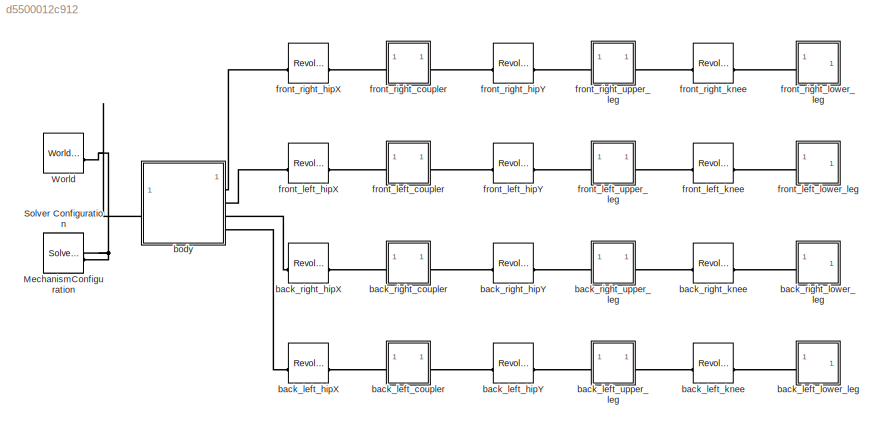
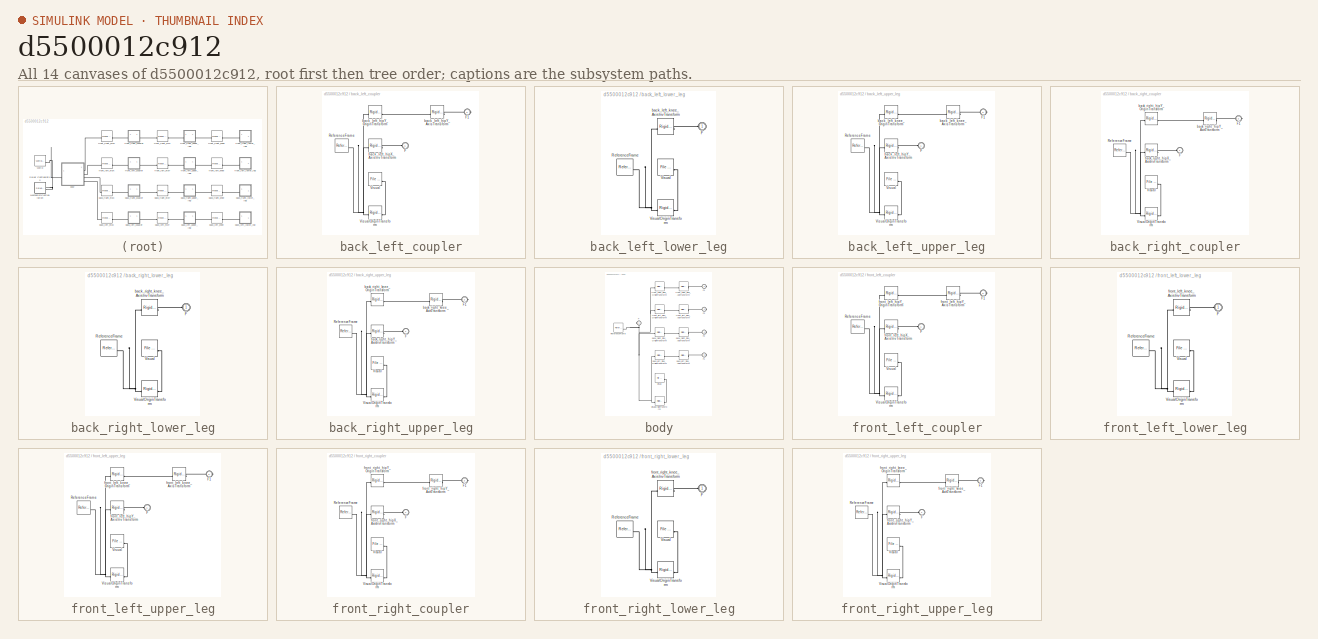
[diagram: thumbnail index - all 14 canvases of the model, root first then tree order]
MODEL slx_d5500012c912
KIND model
CONFIG AbsTol = auto
CONFIG EnableMultiTasking = off
CONFIG FixedStep = auto
CONFIG MaxStep = auto
CONFIG MinStep = auto
CONFIG RelTol = 1e-3
CONFIG SampleTimeConstraint = Unconstrained
CONFIG SolverName = VariableStepAuto
CONFIG StartTime = 0.0
CONFIG StopTime = 10.0
BLOCK [Reference] MechanismConfiguration  REF=sm_lib/Utilities/Mechanism
Configuration
  SourceBlock = sm_lib/Utilities/Mechanism\nConfiguration
  SourceType = Mechanism\nConfiguration
BLOCK [Reference] Solver Configuration  REF=nesl_utility/Solver
Configuration
  SourceBlock = nesl_utility/Solver\nConfiguration
  SourceType = Solver\nConfiguration
BLOCK [Reference] World  REF=sm_lib/Frames and
Transforms/World Frame
  SourceBlock = sm_lib/Frames and\nTransforms/World Frame
  SourceType = World Frame
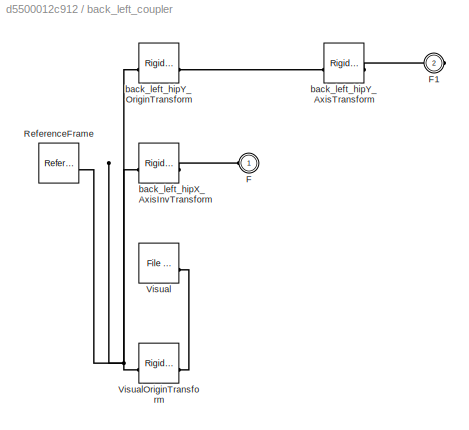
BLOCK [SubSystem] back_left_coupler
BLOCK [PMIOPort] back_left_coupler/F
  Side = Left
BLOCK [PMIOPort] back_left_coupler/F1
  Port = 2
  Side = Right
BLOCK [Reference] back_left_coupler/ReferenceFrame  REF=sm_lib/Frames and
Transforms/Reference
Frame
  SourceBlock = sm_lib/Frames and\nTransforms/Reference\nFrame
  SourceType = Reference\nFrame
BLOCK [Reference] back_left_coupler/Visual  REF=sm_lib/Body Elements/File Solid
  SourceBlock = sm_lib/Body Elements/File Solid
  SourceType = File Solid
BLOCK [Reference] back_left_coupler/VisualOriginTransform  REF=sm_lib/Frames and
Transforms/Rigid
Transform
  SourceBlock = sm_lib/Frames and\nTransforms/Rigid\nTransform
  SourceType = Rigid\nTransform
BLOCK [Reference] back_left_coupler/back_left_hipX_AxisInvTransform  REF=sm_lib/Frames and
Transforms/Rigid
Transform
  SourceBlock = sm_lib/Frames and\nTransforms/Rigid\nTransform
  SourceType = Rigid\nTransform
BLOCK [Reference] back_left_coupler/back_left_hipY_AxisTransform  REF=sm_lib/Frames and
Transforms/Rigid
Transform
  SourceBlock = sm_lib/Frames and\nTransforms/Rigid\nTransform
  SourceType = Rigid\nTransform
BLOCK [Reference] back_left_coupler/back_left_hipY_OriginTransform  REF=sm_lib/Frames and
Transforms/Rigid
Transform
  SourceBlock = sm_lib/Frames and\nTransforms/Rigid\nTransform
  SourceType = Rigid\nTransform
BLOCK [Reference] back_left_hipX  REF=sm_lib/Joints/Revolute Joint
  SourceBlock = sm_lib/Joints/Revolute Joint
  SourceType = Revolute Joint
BLOCK [Reference] back_left_hipY  REF=sm_lib/Joints/Revolute Joint
  SourceBlock = sm_lib/Joints/Revolute Joint
  SourceType = Revolute Joint
BLOCK [Reference] back_left_knee  REF=sm_lib/Joints/Revolute Joint
  SourceBlock = sm_lib/Joints/Revolute Joint
  SourceType = Revolute Joint
BLOCK [SubSystem] back_left_lower_leg
BLOCK [PMIOPort] back_left_lower_leg/F
  Side = Left
BLOCK [Reference] back_left_lower_leg/ReferenceFrame  REF=sm_lib/Frames and
Transforms/Reference
Frame
  SourceBlock = sm_lib/Frames and\nTransforms/Reference\nFrame
  SourceType = Reference\nFrame
BLOCK [Reference] back_left_lower_leg/Visual  REF=sm_lib/Body Elements/File Solid
  SourceBlock = sm_lib/Body Elements/File Solid
  SourceType = File Solid
BLOCK [Reference] back_left_lower_leg/VisualOriginTransform  REF=sm_lib/Frames and
Transforms/Rigid
Transform
  SourceBlock = sm_lib/Frames and\nTransforms/Rigid\nTransform
  SourceType = Rigid\nTransform
BLOCK [Reference] back_left_lower_leg/back_left_knee_AxisInvTransform  REF=sm_lib/Frames and
Transforms/Rigid
Transform
  SourceBlock = sm_lib/Frames and\nTransforms/Rigid\nTransform
  SourceType = Rigid\nTransform
BLOCK [SubSystem] back_left_upper_leg
BLOCK [PMIOPort] back_left_upper_leg/F
  Side = Left
BLOCK [PMIOPort] back_left_upper_leg/F1
  Port = 2
  Side = Right
BLOCK [Reference] back_left_upper_leg/ReferenceFrame  REF=sm_lib/Frames and
Transforms/Reference
Frame
  SourceBlock = sm_lib/Frames and\nTransforms/Reference\nFrame
  SourceType = Reference\nFrame
BLOCK [Reference] back_left_upper_leg/Visual  REF=sm_lib/Body Elements/File Solid
  SourceBlock = sm_lib/Body Elements/File Solid
  SourceType = File Solid
BLOCK [Reference] back_left_upper_leg/VisualOriginTransform  REF=sm_lib/Frames and
Transforms/Rigid
Transform
  SourceBlock = sm_lib/Frames and\nTransforms/Rigid\nTransform
  SourceType = Rigid\nTransform
BLOCK [Reference] back_left_upper_leg/back_left_hipY_AxisInvTransform  REF=sm_lib/Frames and
Transforms/Rigid
Transform
  SourceBlock = sm_lib/Frames and\nTransforms/Rigid\nTransform
  SourceType = Rigid\nTransform
BLOCK [Reference] back_left_upper_leg/back_left_knee_AxisTransform  REF=sm_lib/Frames and
Transforms/Rigid
Transform
  SourceBlock = sm_lib/Frames and\nTransforms/Rigid\nTransform
  SourceType = Rigid\nTransform
BLOCK [Reference] back_left_upper_leg/back_left_knee_OriginTransform  REF=sm_lib/Frames and
Transforms/Rigid
Transform
  SourceBlock = sm_lib/Frames and\nTransforms/Rigid\nTransform
  SourceType = Rigid\nTransform
BLOCK [SubSystem] back_right_coupler
BLOCK [PMIOPort] back_right_coupler/F
  Side = Left
BLOCK [PMIOPort] back_right_coupler/F1
  Port = 2
  Side = Right
BLOCK [Reference] back_right_coupler/ReferenceFrame  REF=sm_lib/Frames and
Transforms/Reference
Frame
  SourceBlock = sm_lib/Frames and\nTransforms/Reference\nFrame
  SourceType = Reference\nFrame
BLOCK [Reference] back_right_coupler/Visual  REF=sm_lib/Body Elements/File Solid
  SourceBlock = sm_lib/Body Elements/File Solid
  SourceType = File Solid
BLOCK [Reference] back_right_coupler/VisualOriginTransform  REF=sm_lib/Frames and
Transforms/Rigid
Transform
  SourceBlock = sm_lib/Frames and\nTransforms/Rigid\nTransform
  SourceType = Rigid\nTransform
BLOCK [Reference] back_right_coupler/back_right_hipX_AxisInvTransform  REF=sm_lib/Frames and
Transforms/Rigid
Transform
  SourceBlock = sm_lib/Frames and\nTransforms/Rigid\nTransform
  SourceType = Rigid\nTransform
BLOCK [Reference] back_right_coupler/back_right_hipY_AxisTransform  REF=sm_lib/Frames and
Transforms/Rigid
Transform
  SourceBlock = sm_lib/Frames and\nTransforms/Rigid\nTransform
  SourceType = Rigid\nTransform
BLOCK [Reference] back_right_coupler/back_right_hipY_OriginTransform  REF=sm_lib/Frames and
Transforms/Rigid
Transform
  SourceBlock = sm_lib/Frames and\nTransforms/Rigid\nTransform
  SourceType = Rigid\nTransform
BLOCK [Reference] back_right_hipX  REF=sm_lib/Joints/Revolute Joint
  SourceBlock = sm_lib/Joints/Revolute Joint
  SourceType = Revolute Joint
BLOCK [Reference] back_right_hipY  REF=sm_lib/Joints/Revolute Joint
  SourceBlock = sm_lib/Joints/Revolute Joint
  SourceType = Revolute Joint
BLOCK [Reference] back_right_knee  REF=sm_lib/Joints/Revolute Joint
  SourceBlock = sm_lib/Joints/Revolute Joint
  SourceType = Revolute Joint
BLOCK [SubSystem] back_right_lower_leg
BLOCK [PMIOPort] back_right_lower_leg/F
  Side = Left
BLOCK [Reference] back_right_lower_leg/ReferenceFrame  REF=sm_lib/Frames and
Transforms/Reference
Frame
  SourceBlock = sm_lib/Frames and\nTransforms/Reference\nFrame
  SourceType = Reference\nFrame
BLOCK [Reference] back_right_lower_leg/Visual  REF=sm_lib/Body Elements/File Solid
  SourceBlock = sm_lib/Body Elements/File Solid
  SourceType = File Solid
BLOCK [Reference] back_right_lower_leg/VisualOriginTransform  REF=sm_lib/Frames and
Transforms/Rigid
Transform
  SourceBlock = sm_lib/Frames and\nTransforms/Rigid\nTransform
  SourceType = Rigid\nTransform
BLOCK [Reference] back_right_lower_leg/back_right_knee_AxisInvTransform  REF=sm_lib/Frames and
Transforms/Rigid
Transform
  SourceBlock = sm_lib/Frames and\nTransforms/Rigid\nTransform
  SourceType = Rigid\nTransform
BLOCK [SubSystem] back_right_upper_leg
BLOCK [PMIOPort] back_right_upper_leg/F
  Side = Left
BLOCK [PMIOPort] back_right_upper_leg/F1
  Port = 2
  Side = Right
BLOCK [Reference] back_right_upper_leg/ReferenceFrame  REF=sm_lib/Frames and
Transforms/Reference
Frame
  SourceBlock = sm_lib/Frames and\nTransforms/Reference\nFrame
  SourceType = Reference\nFrame
BLOCK [Reference] back_right_upper_leg/Visual  REF=sm_lib/Body Elements/File Solid
  SourceBlock = sm_lib/Body Elements/File Solid
  SourceType = File Solid
BLOCK [Reference] back_right_upper_leg/VisualOriginTransform  REF=sm_lib/Frames and
Transforms/Rigid
Transform
  SourceBlock = sm_lib/Frames and\nTransforms/Rigid\nTransform
  SourceType = Rigid\nTransform
BLOCK [Reference] back_right_upper_leg/back_right_hipY_AxisInvTransform  REF=sm_lib/Frames and
Transforms/Rigid
Transform
  SourceBlock = sm_lib/Frames and\nTransforms/Rigid\nTransform
  SourceType = Rigid\nTransform
BLOCK [Reference] back_right_upper_leg/back_right_knee_AxisTransform  REF=sm_lib/Frames and
Transforms/Rigid
Transform
  SourceBlock = sm_lib/Frames and\nTransforms/Rigid\nTransform
  SourceType = Rigid\nTransform
BLOCK [Reference] back_right_upper_leg/back_right_knee_OriginTransform  REF=sm_lib/Frames and
Transforms/Rigid
Transform
  SourceBlock = sm_lib/Frames and\nTransforms/Rigid\nTransform
  SourceType = Rigid\nTransform
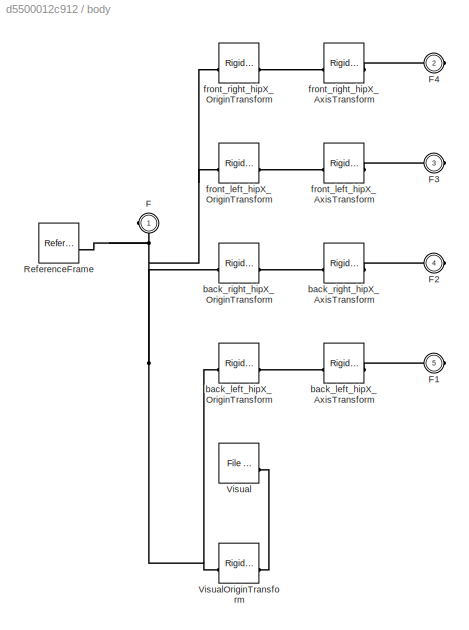
BLOCK [SubSystem] body
BLOCK [PMIOPort] body/F
  Side = Left
BLOCK [PMIOPort] body/F1
  Port = 5
  Side = Right
BLOCK [PMIOPort] body/F2
  Port = 4
  Side = Right
BLOCK [PMIOPort] body/F3
  Port = 3
  Side = Right
BLOCK [PMIOPort] body/F4
  Port = 2
  Side = Right
BLOCK [Reference] body/ReferenceFrame  REF=sm_lib/Frames and
Transforms/Reference
Frame
  SourceBlock = sm_lib/Frames and\nTransforms/Reference\nFrame
  SourceType = Reference\nFrame
BLOCK [Reference] body/Visual  REF=sm_lib/Body Elements/File Solid
  SourceBlock = sm_lib/Body Elements/File Solid
  SourceType = File Solid
BLOCK [Reference] body/VisualOriginTransform  REF=sm_lib/Frames and
Transforms/Rigid
Transform
  SourceBlock = sm_lib/Frames and\nTransforms/Rigid\nTransform
  SourceType = Rigid\nTransform
BLOCK [Reference] body/back_left_hipX_AxisTransform  REF=sm_lib/Frames and
Transforms/Rigid
Transform
  SourceBlock = sm_lib/Frames and\nTransforms/Rigid\nTransform
  SourceType = Rigid\nTransform
BLOCK [Reference] body/back_left_hipX_OriginTransform  REF=sm_lib/Frames and
Transforms/Rigid
Transform
  SourceBlock = sm_lib/Frames and\nTransforms/Rigid\nTransform
  SourceType = Rigid\nTransform
BLOCK [Reference] body/back_right_hipX_AxisTransform  REF=sm_lib/Frames and
Transforms/Rigid
Transform
  SourceBlock = sm_lib/Frames and\nTransforms/Rigid\nTransform
  SourceType = Rigid\nTransform
BLOCK [Reference] body/back_right_hipX_OriginTransform  REF=sm_lib/Frames and
Transforms/Rigid
Transform
  SourceBlock = sm_lib/Frames and\nTransforms/Rigid\nTransform
  SourceType = Rigid\nTransform
BLOCK [Reference] body/front_left_hipX_AxisTransform  REF=sm_lib/Frames and
Transforms/Rigid
Transform
  SourceBlock = sm_lib/Frames and\nTransforms/Rigid\nTransform
  SourceType = Rigid\nTransform
BLOCK [Reference] body/front_left_hipX_OriginTransform  REF=sm_lib/Frames and
Transforms/Rigid
Transform
  SourceBlock = sm_lib/Frames and\nTransforms/Rigid\nTransform
  SourceType = Rigid\nTransform
BLOCK [Reference] body/front_right_hipX_AxisTransform  REF=sm_lib/Frames and
Transforms/Rigid
Transform
  SourceBlock = sm_lib/Frames and\nTransforms/Rigid\nTransform
  SourceType = Rigid\nTransform
BLOCK [Reference] body/front_right_hipX_OriginTransform  REF=sm_lib/Frames and
Transforms/Rigid
Transform
  SourceBlock = sm_lib/Frames and\nTransforms/Rigid\nTransform
  SourceType = Rigid\nTransform
BLOCK [SubSystem] front_left_coupler
BLOCK [PMIOPort] front_left_coupler/F
  Side = Left
BLOCK [PMIOPort] front_left_coupler/F1
  Port = 2
  Side = Right
BLOCK [Reference] front_left_coupler/ReferenceFrame  REF=sm_lib/Frames and
Transforms/Reference
Frame
  SourceBlock = sm_lib/Frames and\nTransforms/Reference\nFrame
  SourceType = Reference\nFrame
BLOCK [Reference] front_left_coupler/Visual  REF=sm_lib/Body Elements/File Solid
  SourceBlock = sm_lib/Body Elements/File Solid
  SourceType = File Solid
BLOCK [Reference] front_left_coupler/VisualOriginTransform  REF=sm_lib/Frames and
Transforms/Rigid
Transform
  SourceBlock = sm_lib/Frames and\nTransforms/Rigid\nTransform
  SourceType = Rigid\nTransform
BLOCK [Reference] front_left_coupler/front_left_hipX_AxisInvTransform  REF=sm_lib/Frames and
Transforms/Rigid
Transform
  SourceBlock = sm_lib/Frames and\nTransforms/Rigid\nTransform
  SourceType = Rigid\nTransform
BLOCK [Reference] front_left_coupler/front_left_hipY_AxisTransform  REF=sm_lib/Frames and
Transforms/Rigid
Transform
  SourceBlock = sm_lib/Frames and\nTransforms/Rigid\nTransform
  SourceType = Rigid\nTransform
BLOCK [Reference] front_left_coupler/front_left_hipY_OriginTransform  REF=sm_lib/Frames and
Transforms/Rigid
Transform
  SourceBlock = sm_lib/Frames and\nTransforms/Rigid\nTransform
  SourceType = Rigid\nTransform
BLOCK [Reference] front_left_hipX  REF=sm_lib/Joints/Revolute Joint
  SourceBlock = sm_lib/Joints/Revolute Joint
  SourceType = Revolute Joint
BLOCK [Reference] front_left_hipY  REF=sm_lib/Joints/Revolute Joint
  SourceBlock = sm_lib/Joints/Revolute Joint
  SourceType = Revolute Joint
BLOCK [Reference] front_left_knee  REF=sm_lib/Joints/Revolute Joint
  SourceBlock = sm_lib/Joints/Revolute Joint
  SourceType = Revolute Joint
BLOCK [SubSystem] front_left_lower_leg
BLOCK [PMIOPort] front_left_lower_leg/F
  Side = Left
BLOCK [Reference] front_left_lower_leg/ReferenceFrame  REF=sm_lib/Frames and
Transforms/Reference
Frame
  SourceBlock = sm_lib/Frames and\nTransforms/Reference\nFrame
  SourceType = Reference\nFrame
BLOCK [Reference] front_left_lower_leg/Visual  REF=sm_lib/Body Elements/File Solid
  SourceBlock = sm_lib/Body Elements/File Solid
  SourceType = File Solid
BLOCK [Reference] front_left_lower_leg/VisualOriginTransform  REF=sm_lib/Frames and
Transforms/Rigid
Transform
  SourceBlock = sm_lib/Frames and\nTransforms/Rigid\nTransform
  SourceType = Rigid\nTransform
BLOCK [Reference] front_left_lower_leg/front_left_knee_AxisInvTransform  REF=sm_lib/Frames and
Transforms/Rigid
Transform
  SourceBlock = sm_lib/Frames and\nTransforms/Rigid\nTransform
  SourceType = Rigid\nTransform
BLOCK [SubSystem] front_left_upper_leg
BLOCK [PMIOPort] front_left_upper_leg/F
  Side = Left
BLOCK [PMIOPort] front_left_upper_leg/F1
  Port = 2
  Side = Right
BLOCK [Reference] front_left_upper_leg/ReferenceFrame  REF=sm_lib/Frames and
Transforms/Reference
Frame
  SourceBlock = sm_lib/Frames and\nTransforms/Reference\nFrame
  SourceType = Reference\nFrame
BLOCK [Reference] front_left_upper_leg/Visual  REF=sm_lib/Body Elements/File Solid
  SourceBlock = sm_lib/Body Elements/File Solid
  SourceType = File Solid
BLOCK [Reference] front_left_upper_leg/VisualOriginTransform  REF=sm_lib/Frames and
Transforms/Rigid
Transform
  SourceBlock = sm_lib/Frames and\nTransforms/Rigid\nTransform
  SourceType = Rigid\nTransform
BLOCK [Reference] front_left_upper_leg/front_left_hipY_AxisInvTransform  REF=sm_lib/Frames and
Transforms/Rigid
Transform
  SourceBlock = sm_lib/Frames and\nTransforms/Rigid\nTransform
  SourceType = Rigid\nTransform
BLOCK [Reference] front_left_upper_leg/front_left_knee_AxisTransform  REF=sm_lib/Frames and
Transforms/Rigid
Transform
  SourceBlock = sm_lib/Frames and\nTransforms/Rigid\nTransform
  SourceType = Rigid\nTransform
BLOCK [Reference] front_left_upper_leg/front_left_knee_OriginTransform  REF=sm_lib/Frames and
Transforms/Rigid
Transform
  SourceBlock = sm_lib/Frames and\nTransforms/Rigid\nTransform
  SourceType = Rigid\nTransform
BLOCK [SubSystem] front_right_coupler
BLOCK [PMIOPort] front_right_coupler/F
  Side = Left
BLOCK [PMIOPort] front_right_coupler/F1
  Port = 2
  Side = Right
BLOCK [Reference] front_right_coupler/ReferenceFrame  REF=sm_lib/Frames and
Transforms/Reference
Frame
  SourceBlock = sm_lib/Frames and\nTransforms/Reference\nFrame
  SourceType = Reference\nFrame
BLOCK [Reference] front_right_coupler/Visual  REF=sm_lib/Body Elements/File Solid
  SourceBlock = sm_lib/Body Elements/File Solid
  SourceType = File Solid
BLOCK [Reference] front_right_coupler/VisualOriginTransform  REF=sm_lib/Frames and
Transforms/Rigid
Transform
  SourceBlock = sm_lib/Frames and\nTransforms/Rigid\nTransform
  SourceType = Rigid\nTransform
BLOCK [Reference] front_right_coupler/front_right_hipX_AxisInvTransform  REF=sm_lib/Frames and
Transforms/Rigid
Transform
  SourceBlock = sm_lib/Frames and\nTransforms/Rigid\nTransform
  SourceType = Rigid\nTransform
BLOCK [Reference] front_right_coupler/front_right_hipY_AxisTransform  REF=sm_lib/Frames and
Transforms/Rigid
Transform
  SourceBlock = sm_lib/Frames and\nTransforms/Rigid\nTransform
  SourceType = Rigid\nTransform
BLOCK [Reference] front_right_coupler/front_right_hipY_OriginTransform  REF=sm_lib/Frames and
Transforms/Rigid
Transform
  SourceBlock = sm_lib/Frames and\nTransforms/Rigid\nTransform
  SourceType = Rigid\nTransform
BLOCK [Reference] front_right_hipX  REF=sm_lib/Joints/Revolute Joint
  SourceBlock = sm_lib/Joints/Revolute Joint
  SourceType = Revolute Joint
BLOCK [Reference] front_right_hipY  REF=sm_lib/Joints/Revolute Joint
  SourceBlock = sm_lib/Joints/Revolute Joint
  SourceType = Revolute Joint
BLOCK [Reference] front_right_knee  REF=sm_lib/Joints/Revolute Joint
  SourceBlock = sm_lib/Joints/Revolute Joint
  SourceType = Revolute Joint
BLOCK [SubSystem] front_right_lower_leg
BLOCK [PMIOPort] front_right_lower_leg/F
  Side = Left
BLOCK [Reference] front_right_lower_leg/ReferenceFrame  REF=sm_lib/Frames and
Transforms/Reference
Frame
  SourceBlock = sm_lib/Frames and\nTransforms/Reference\nFrame
  SourceType = Reference\nFrame
BLOCK [Reference] front_right_lower_leg/Visual  REF=sm_lib/Body Elements/File Solid
  SourceBlock = sm_lib/Body Elements/File Solid
  SourceType = File Solid
BLOCK [Reference] front_right_lower_leg/VisualOriginTransform  REF=sm_lib/Frames and
Transforms/Rigid
Transform
  SourceBlock = sm_lib/Frames and\nTransforms/Rigid\nTransform
  SourceType = Rigid\nTransform
BLOCK [Reference] front_right_lower_leg/front_right_knee_AxisInvTransform  REF=sm_lib/Frames and
Transforms/Rigid
Transform
  SourceBlock = sm_lib/Frames and\nTransforms/Rigid\nTransform
  SourceType = Rigid\nTransform
BLOCK [SubSystem] front_right_upper_leg
BLOCK [PMIOPort] front_right_upper_leg/F
  Side = Left
BLOCK [PMIOPort] front_right_upper_leg/F1
  Port = 2
  Side = Right
BLOCK [Reference] front_right_upper_leg/ReferenceFrame  REF=sm_lib/Frames and
Transforms/Reference
Frame
  SourceBlock = sm_lib/Frames and\nTransforms/Reference\nFrame
  SourceType = Reference\nFrame
BLOCK [Reference] front_right_upper_leg/Visual  REF=sm_lib/Body Elements/File Solid
  SourceBlock = sm_lib/Body Elements/File Solid
  SourceType = File Solid
BLOCK [Reference] front_right_upper_leg/VisualOriginTransform  REF=sm_lib/Frames and
Transforms/Rigid
Transform
  SourceBlock = sm_lib/Frames and\nTransforms/Rigid\nTransform
  SourceType = Rigid\nTransform
BLOCK [Reference] front_right_upper_leg/front_right_hipY_AxisInvTransform  REF=sm_lib/Frames and
Transforms/Rigid
Transform
  SourceBlock = sm_lib/Frames and\nTransforms/Rigid\nTransform
  SourceType = Rigid\nTransform
BLOCK [Reference] front_right_upper_leg/front_right_knee_AxisTransform  REF=sm_lib/Frames and
Transforms/Rigid
Transform
  SourceBlock = sm_lib/Frames and\nTransforms/Rigid\nTransform
  SourceType = Rigid\nTransform
BLOCK [Reference] front_right_upper_leg/front_right_knee_OriginTransform  REF=sm_lib/Frames and
Transforms/Rigid
Transform
  SourceBlock = sm_lib/Frames and\nTransforms/Rigid\nTransform
  SourceType = Rigid\nTransform
PNET net1: MechanismConfiguration:RConn1 -- Solver Configuration:RConn1 -- World:RConn1 -- body:LConn1
PLINE back_left_coupler/F1:RConn1 -- back_left_coupler/back_left_hipY_AxisTransform:RConn1
PLINE back_left_coupler/F:RConn1 -- back_left_coupler/back_left_hipX_AxisInvTransform:RConn1
PNET net2: back_left_coupler/ReferenceFrame:RConn1 -- back_left_coupler/VisualOriginTransform:LConn1 -- back_left_coupler/back_left_hipX_AxisInvTransform:LConn1 -- back_left_coupler/back_left_hipY_OriginTransform:LConn1
PLINE back_left_coupler/Visual:RConn1 -- back_left_coupler/VisualOriginTransform:RConn1
PLINE back_left_coupler/back_left_hipY_AxisTransform:LConn1 -- back_left_coupler/back_left_hipY_OriginTransform:RConn1
PLINE back_left_coupler:LConn1 -- back_left_hipX:RConn1
PLINE back_left_coupler:RConn1 -- back_left_hipY:LConn1
PLINE back_left_hipX:LConn1 -- body:RConn4
PLINE back_left_hipY:RConn1 -- back_left_upper_leg:LConn1
PLINE back_left_knee:LConn1 -- back_left_upper_leg:RConn1
PLINE back_left_knee:RConn1 -- back_left_lower_leg:LConn1
PLINE back_left_lower_leg/F:RConn1 -- back_left_lower_leg/back_left_knee_AxisInvTransform:RConn1
PNET net3: back_left_lower_leg/ReferenceFrame:RConn1 -- back_left_lower_leg/VisualOriginTransform:LConn1 -- back_left_lower_leg/back_left_knee_AxisInvTransform:LConn1
PLINE back_left_lower_leg/Visual:RConn1 -- back_left_lower_leg/VisualOriginTransform:RConn1
PLINE back_left_upper_leg/F1:RConn1 -- back_left_upper_leg/back_left_knee_AxisTransform:RConn1
PLINE back_left_upper_leg/F:RConn1 -- back_left_upper_leg/back_left_hipY_AxisInvTransform:RConn1
PNET net4: back_left_upper_leg/ReferenceFrame:RConn1 -- back_left_upper_leg/VisualOriginTransform:LConn1 -- back_left_upper_leg/back_left_hipY_AxisInvTransform:LConn1 -- back_left_upper_leg/back_left_knee_OriginTransform:LConn1
PLINE back_left_upper_leg/Visual:RConn1 -- back_left_upper_leg/VisualOriginTransform:RConn1
PLINE back_left_upper_leg/back_left_knee_AxisTransform:LConn1 -- back_left_upper_leg/back_left_knee_OriginTransform:RConn1
PLINE back_right_coupler/F1:RConn1 -- back_right_coupler/back_right_hipY_AxisTransform:RConn1
PLINE back_right_coupler/F:RConn1 -- back_right_coupler/back_right_hipX_AxisInvTransform:RConn1
PNET net5: back_right_coupler/ReferenceFrame:RConn1 -- back_right_coupler/VisualOriginTransform:LConn1 -- back_right_coupler/back_right_hipX_AxisInvTransform:LConn1 -- back_right_coupler/back_right_hipY_OriginTransform:LConn1
PLINE back_right_coupler/Visual:RConn1 -- back_right_coupler/VisualOriginTransform:RConn1
PLINE back_right_coupler/back_right_hipY_AxisTransform:LConn1 -- back_right_coupler/back_right_hipY_OriginTransform:RConn1
PLINE back_right_coupler:LConn1 -- back_right_hipX:RConn1
PLINE back_right_coupler:RConn1 -- back_right_hipY:LConn1
PLINE back_right_hipX:LConn1 -- body:RConn3
PLINE back_right_hipY:RConn1 -- back_right_upper_leg:LConn1
PLINE back_right_knee:LConn1 -- back_right_upper_leg:RConn1
PLINE back_right_knee:RConn1 -- back_right_lower_leg:LConn1
PLINE back_right_lower_leg/F:RConn1 -- back_right_lower_leg/back_right_knee_AxisInvTransform:RConn1
PNET net6: back_right_lower_leg/ReferenceFrame:RConn1 -- back_right_lower_leg/VisualOriginTransform:LConn1 -- back_right_lower_leg/back_right_knee_AxisInvTransform:LConn1
PLINE back_right_lower_leg/Visual:RConn1 -- back_right_lower_leg/VisualOriginTransform:RConn1
PLINE back_right_upper_leg/F1:RConn1 -- back_right_upper_leg/back_right_knee_AxisTransform:RConn1
PLINE back_right_upper_leg/F:RConn1 -- back_right_upper_leg/back_right_hipY_AxisInvTransform:RConn1
PNET net7: back_right_upper_leg/ReferenceFrame:RConn1 -- back_right_upper_leg/VisualOriginTransform:LConn1 -- back_right_upper_leg/back_right_hipY_AxisInvTransform:LConn1 -- back_right_upper_leg/back_right_knee_OriginTransform:LConn1
PLINE back_right_upper_leg/Visual:RConn1 -- back_right_upper_leg/VisualOriginTransform:RConn1
PLINE back_right_upper_leg/back_right_knee_AxisTransform:LConn1 -- back_right_upper_leg/back_right_knee_OriginTransform:RConn1
PLINE body/F1:RConn1 -- body/back_left_hipX_AxisTransform:RConn1
PLINE body/F2:RConn1 -- body/back_right_hipX_AxisTransform:RConn1
PLINE body/F3:RConn1 -- body/front_left_hipX_AxisTransform:RConn1
PLINE body/F4:RConn1 -- body/front_right_hipX_AxisTransform:RConn1
PNET net8: body/F:RConn1 -- body/ReferenceFrame:RConn1 -- body/VisualOriginTransform:LConn1 -- body/back_left_hipX_OriginTransform:LConn1 -- body/back_right_hipX_OriginTransform:LConn1 -- body/front_left_hipX_OriginTransform:LConn1 -- body/front_right_hipX_OriginTransform:LConn1
PLINE body/Visual:RConn1 -- body/VisualOriginTransform:RConn1
PLINE body/back_left_hipX_AxisTransform:LConn1 -- body/back_left_hipX_OriginTransform:RConn1
PLINE body/back_right_hipX_AxisTransform:LConn1 -- body/back_right_hipX_OriginTransform:RConn1
PLINE body/front_left_hipX_AxisTransform:LConn1 -- body/front_left_hipX_OriginTransform:RConn1
PLINE body/front_right_hipX_AxisTransform:LConn1 -- body/front_right_hipX_OriginTransform:RConn1
PLINE body:RConn1 -- front_right_hipX:LConn1
PLINE body:RConn2 -- front_left_hipX:LConn1
PLINE front_left_coupler/F1:RConn1 -- front_left_coupler/front_left_hipY_AxisTransform:RConn1
PLINE front_left_coupler/F:RConn1 -- front_left_coupler/front_left_hipX_AxisInvTransform:RConn1
PNET net9: front_left_coupler/ReferenceFrame:RConn1 -- front_left_coupler/VisualOriginTransform:LConn1 -- front_left_coupler/front_left_hipX_AxisInvTransform:LConn1 -- front_left_coupler/front_left_hipY_OriginTransform:LConn1
PLINE front_left_coupler/Visual:RConn1 -- front_left_coupler/VisualOriginTransform:RConn1
PLINE front_left_coupler/front_left_hipY_AxisTransform:LConn1 -- front_left_coupler/front_left_hipY_OriginTransform:RConn1
PLINE front_left_coupler:LConn1 -- front_left_hipX:RConn1
PLINE front_left_coupler:RConn1 -- front_left_hipY:LConn1
PLINE front_left_hipY:RConn1 -- front_left_upper_leg:LConn1
PLINE front_left_knee:LConn1 -- front_left_upper_leg:RConn1
PLINE front_left_knee:RConn1 -- front_left_lower_leg:LConn1
PLINE front_left_lower_leg/F:RConn1 -- front_left_lower_leg/front_left_knee_AxisInvTransform:RConn1
PNET net10: front_left_lower_leg/ReferenceFrame:RConn1 -- front_left_lower_leg/VisualOriginTransform:LConn1 -- front_left_lower_leg/front_left_knee_AxisInvTransform:LConn1
PLINE front_left_lower_leg/Visual:RConn1 -- front_left_lower_leg/VisualOriginTransform:RConn1
PLINE front_left_upper_leg/F1:RConn1 -- front_left_upper_leg/front_left_knee_AxisTransform:RConn1
PLINE front_left_upper_leg/F:RConn1 -- front_left_upper_leg/front_left_hipY_AxisInvTransform:RConn1
PNET net11: front_left_upper_leg/ReferenceFrame:RConn1 -- front_left_upper_leg/VisualOriginTransform:LConn1 -- front_left_upper_leg/front_left_hipY_AxisInvTransform:LConn1 -- front_left_upper_leg/front_left_knee_OriginTransform:LConn1
PLINE front_left_upper_leg/Visual:RConn1 -- front_left_upper_leg/VisualOriginTransform:RConn1
PLINE front_left_upper_leg/front_left_knee_AxisTransform:LConn1 -- front_left_upper_leg/front_left_knee_OriginTransform:RConn1
PLINE front_right_coupler/F1:RConn1 -- front_right_coupler/front_right_hipY_AxisTransform:RConn1
PLINE front_right_coupler/F:RConn1 -- front_right_coupler/front_right_hipX_AxisInvTransform:RConn1
PNET net12: front_right_coupler/ReferenceFrame:RConn1 -- front_right_coupler/VisualOriginTransform:LConn1 -- front_right_coupler/front_right_hipX_AxisInvTransform:LConn1 -- front_right_coupler/front_right_hipY_OriginTransform:LConn1
PLINE front_right_coupler/Visual:RConn1 -- front_right_coupler/VisualOriginTransform:RConn1
PLINE front_right_coupler/front_right_hipY_AxisTransform:LConn1 -- front_right_coupler/front_right_hipY_OriginTransform:RConn1
PLINE front_right_coupler:LConn1 -- front_right_hipX:RConn1
PLINE front_right_coupler:RConn1 -- front_right_hipY:LConn1
PLINE front_right_hipY:RConn1 -- front_right_upper_leg:LConn1
PLINE front_right_knee:LConn1 -- front_right_upper_leg:RConn1
PLINE front_right_knee:RConn1 -- front_right_lower_leg:LConn1
PLINE front_right_lower_leg/F:RConn1 -- front_right_lower_leg/front_right_knee_AxisInvTransform:RConn1
PNET net13: front_right_lower_leg/ReferenceFrame:RConn1 -- front_right_lower_leg/VisualOriginTransform:LConn1 -- front_right_lower_leg/front_right_knee_AxisInvTransform:LConn1
PLINE front_right_lower_leg/Visual:RConn1 -- front_right_lower_leg/VisualOriginTransform:RConn1
PLINE front_right_upper_leg/F1:RConn1 -- front_right_upper_leg/front_right_knee_AxisTransform:RConn1
PLINE front_right_upper_leg/F:RConn1 -- front_right_upper_leg/front_right_hipY_AxisInvTransform:RConn1
PNET net14: front_right_upper_leg/ReferenceFrame:RConn1 -- front_right_upper_leg/VisualOriginTransform:LConn1 -- front_right_upper_leg/front_right_hipY_AxisInvTransform:LConn1 -- front_right_upper_leg/front_right_knee_OriginTransform:LConn1
PLINE front_right_upper_leg/Visual:RConn1 -- front_right_upper_leg/VisualOriginTransform:RConn1
PLINE front_right_upper_leg/front_right_knee_AxisTransform:LConn1 -- front_right_upper_leg/front_right_knee_OriginTransform:RConn1
note: PNET lines group multi-terminal physical nets as a canonical sorted terminal list (undirected conserving connections); 2-terminal nets keep the pairwise PLINE form
